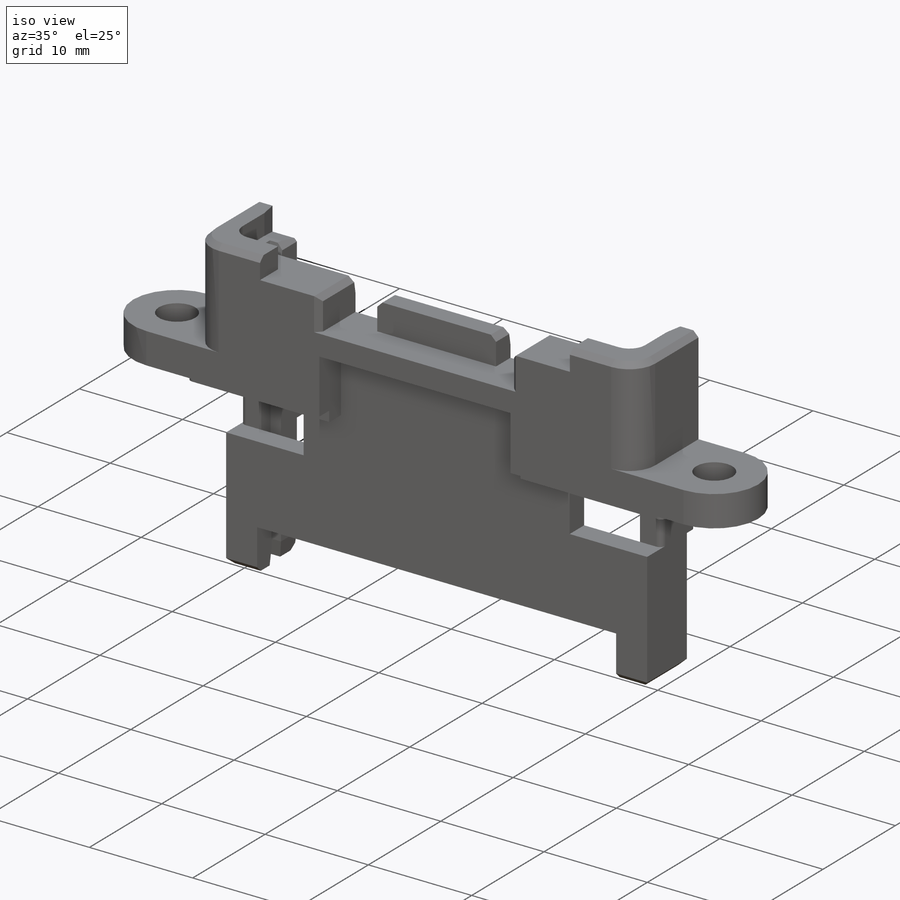
[diagram: iso view]
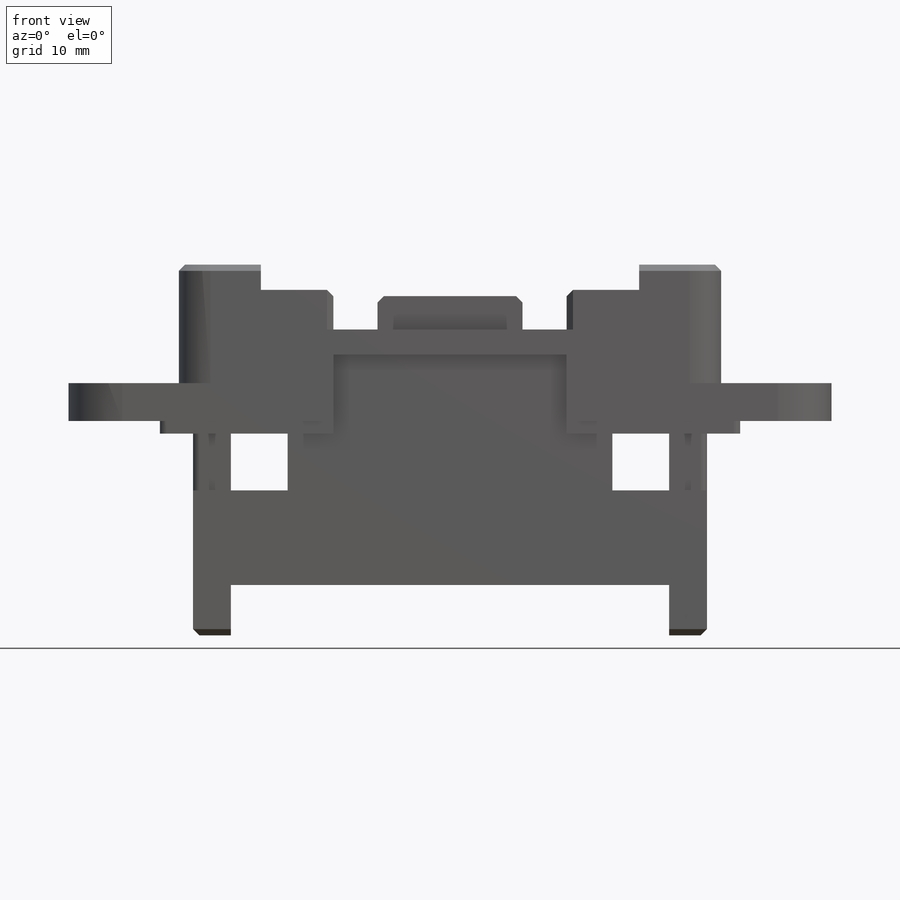
[diagram: front view]
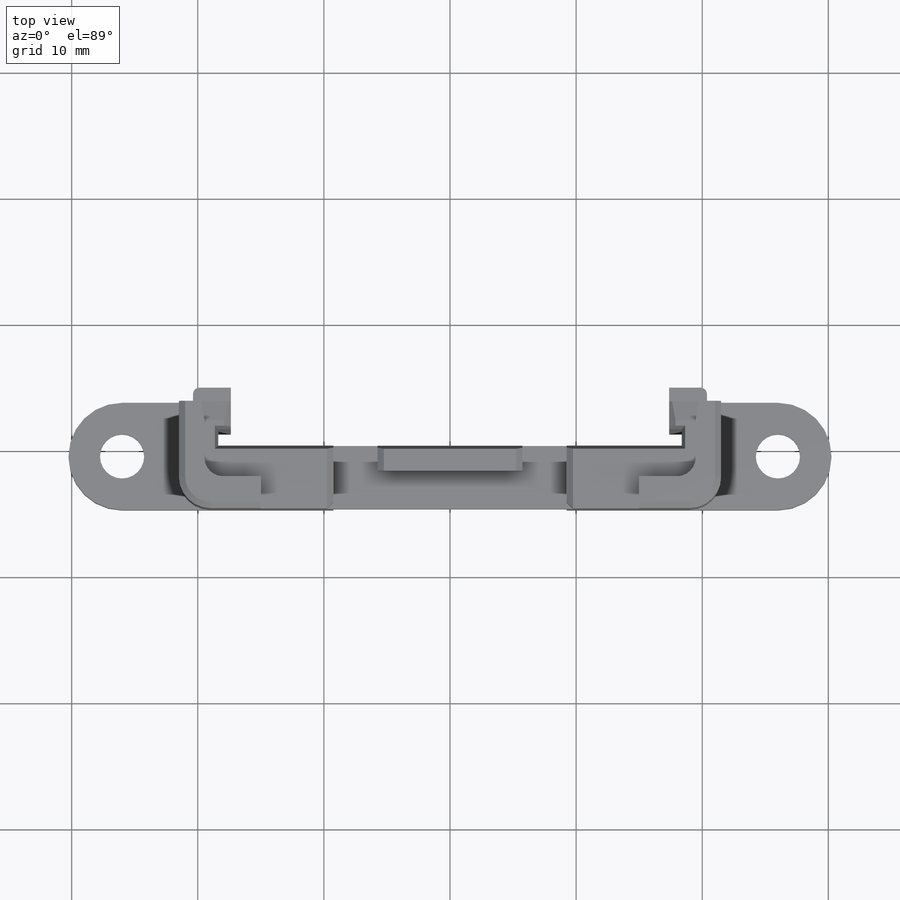
[diagram: top view]
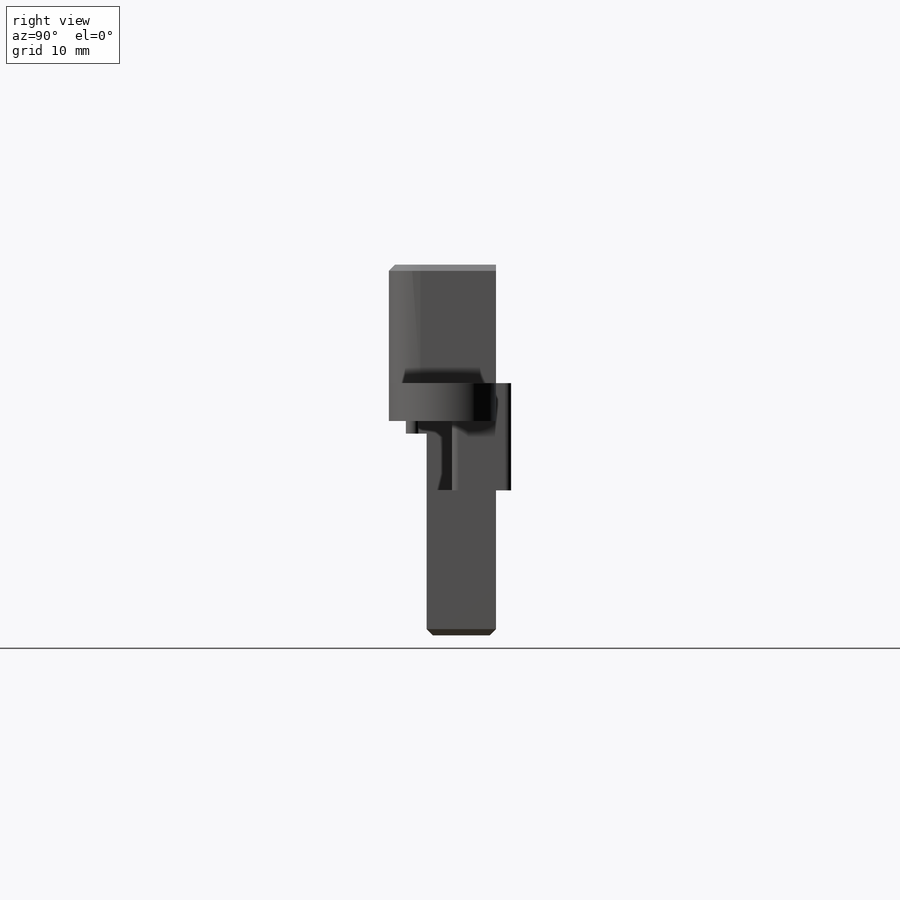
[diagram: right view]
SOLIDWORKS PART (.sldprt)
format: sldprt  version: not decoded by parser v0  size: 1,113,600 bytes
history: native  units: mm
features: sketch x14, cut_extrude x9, extrude x5, chamfer x4, material x1, mirror x1, shell x1, fillet x1 (+16 scaffold rows collapsed)
feature tree (52):
  scaffold x16  (default folders/planes/origin — collapsed)
  material  "Material <not specified>"
  sketch  "Sketch1"  dims[D1=36.75mm D2=40.75mm D3=1.3mm D4=1.0mm D5=3.5mm D6=5.0mm]
  extrude  "Boss-Extrude1"  Depth=7.4mm
  sketch  "Sketch2"  dims[D2=3.5mm D1=26.0mm]
  extrude  "Boss-Extrude2"  Depth=3mm
  sketch  "Sketch8"  dims[c1.D5=1.5mm c1.D1=2.5mm c1.D2=20.0mm c1.D3=2.0mm c1.D4=15.0mm c2.D2=1.1mm c2.D3=21.5mm]
  extrude  "Boss-Extrude7"  Depth=2mm
  sketch  "Sketch21"  dims[D1=6.0mm]
  cut_extrude  "Cut-Extrude11"  Depth=1.25mm
  sketch  "Sketch20"  dims[D1=0.0mm]
  cut_extrude  "Cut-Extrude10"  [1 undecoded]
  mirror  "Mirror1"
  sketch  "Sketch12"  dims[c1.D1=4.5mm c1.D2=~0.932875mm c2.D2=45.0deg c2.D3=1.5mm c2.D4=15.5mm c3.D4=45.0deg c3.D5=2.0mm]
  cut_extrude  "Cut-Extrude3"  [1 undecoded]
  sketch  "Sketch15"  dims[D1=18.5mm D2=3.5mm D3=4.25mm D4=0.5mm]
  cut_extrude  "Cut-Extrude6"  [1 undecoded]
  sketch  "Sketch19"  dims[D1=2.0mm D2=2.0mm]
  cut_extrude  "Cut-Extrude9"  [1 undecoded]
  shell  "Shell1"  Thickness=2mm
  sketch  "Sketch13"  dims[c1.D5=4.0mm c1.D8=6.0mm c1.D1=25.0mm c1.D2=~13.855839mm c2.D2=45.0deg c2.D3=2.5mm c2.D4=7.0mm c2.D6=27.5mm c2.D7=8.0mm c3.D3=7.0mm c3.D7=9.0mm c3.D9=25.0mm c4.D9=135.0deg c5.D9=~25.079872mm c5.D2=25.0mm c6.D2=45.0deg c6.D9=16.0mm]
  cut_extrude  "Cut-Extrude4"  [1 undecoded]
  sketch  "Sketch22"  dims[D1=7.5mm]
  cut_extrude  "Cut-Extrude12"  Depth=5.5mm
  sketch  "Sketch23"
  extrude  "Boss-Extrude8"  Depth=1.2mm
  fillet  "Fillet2"  Radius=0.5mm
  sketch  "Sketch24"  dims[D1=10.5mm]
  cut_extrude  "Cut-Extrude13"  Depth=2mm
  chamfer  "Chamfer2"  Distance=1.5mm Angle=10deg
  chamfer  "Chamfer3"  Distance=0.5mm Angle=45deg
  chamfer  "Chamfer4"  Distance=0.5mm Angle=45deg
  sketch  "Sketch25"  dims[c1.D1=1.0mm c1.D2=2.65mm c1.D3=22.5mm c2.D1=1.0mm c2.D2=2.65mm]
  extrude  "Boss-Extrude9"  Depth=1mm
  chamfer  "Chamfer5"  Distance=1.5mm Angle=10deg
  sketch  "Sketch26"
  cut_extrude  "Cut-Extrude14"  [1 undecoded]
decode coverage: 26 of 35 modeling features carry decoded parameters
note: ~ marks probable driven/reference dimensions
note: 6 parameter values undecoded
summary: no parameter record found for 6 features
note: suppression state not decoded; provenance and decode notes live in map.json
